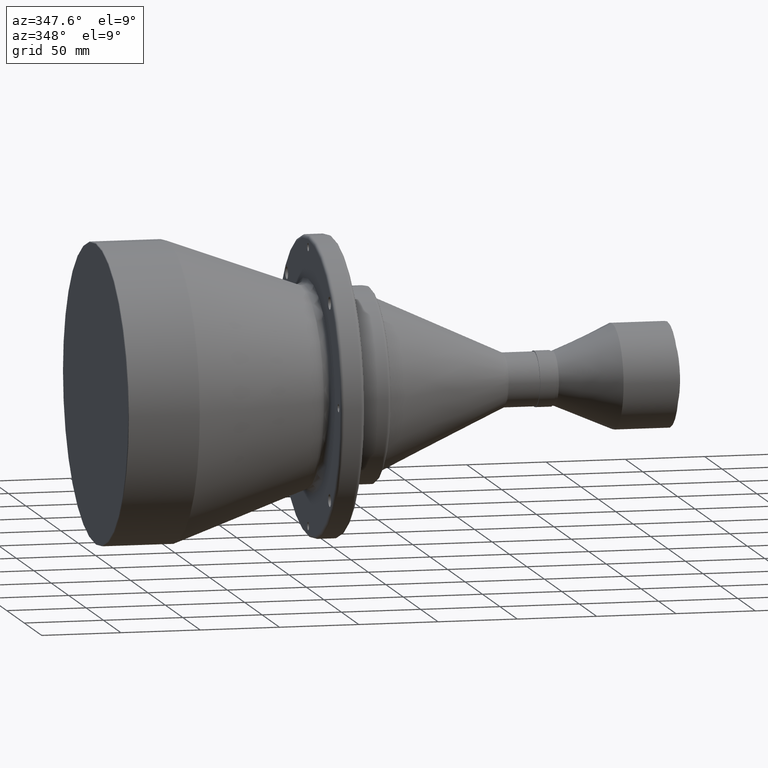
[diagram: clean part render]
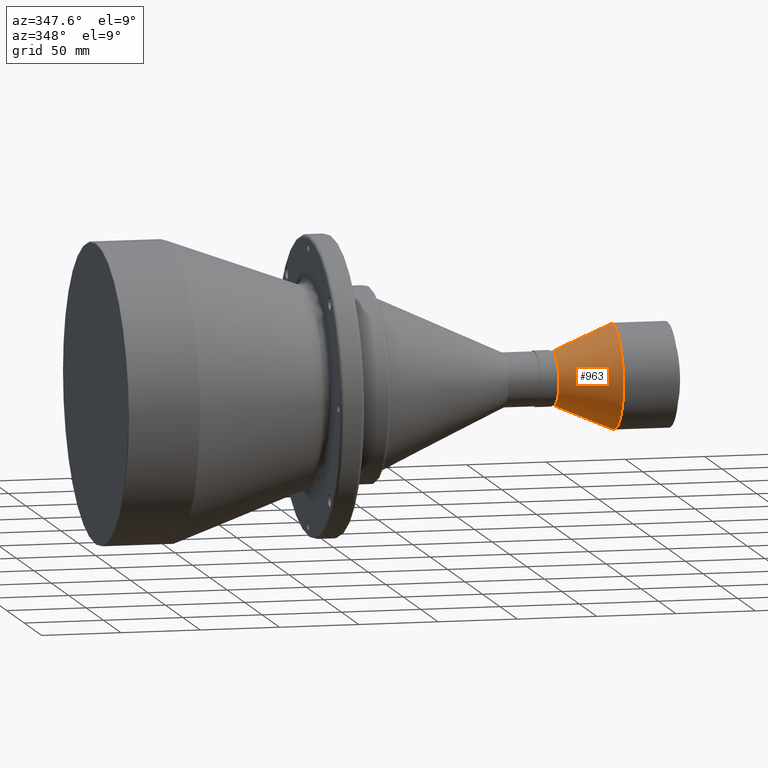
[diagram: same view with one face highlighted and labeled with its STEP entity id]
A machine part, auxiliary view. The second image highlights one B-rep face of the part: STEP entity #963.
In plain terms, the highlighted conical surface has half-angle 23.217 deg.
Its self-contained STEP definition (entity closure, byte-faithful):
#14 = DIRECTION ( 'NONE',  ( -1.000000000000000000, -0.0000000000000000000, -0.0000000000000000000 ) ) ;
#32 = DIRECTION ( 'NONE',  ( 0.0000000000000000000, 0.0000000000000000000, 1.000000000000000000 ) ) ;
#42 = CIRCLE ( 'NONE', #1491, 17.00000000000000000 ) ;
#139 = DIRECTION ( 'NONE',  ( 0.9190175411928217500, 0.0000000000000000000, -0.3942166396537572500 ) ) ;
#211 = CARTESIAN_POINT ( 'NONE',  ( 325.6999999999999900, 0.0000000000000000000, 0.0000000000000000000 ) ) ;
#253 = DIRECTION ( 'NONE',  ( 0.0000000000000000000, 0.0000000000000000000, -1.000000000000000000 ) ) ;
#327 = CARTESIAN_POINT ( 'NONE',  ( 288.3999999999999800, 0.0000000000000000000, 0.0000000000000000000 ) ) ;
#337 = CIRCLE ( 'NONE', #549, 33.00000000000000000 ) ;
#413 = VERTEX_POINT ( 'NONE', #494 ) ;
#462 = EDGE_LOOP ( 'NONE', ( #1801, #1552, #757, #1736 ) ) ;
#494 = CARTESIAN_POINT ( 'NONE',  ( 325.6999999999999900, 4.041334437186266200E-015, -33.00000000000000000 ) ) ;
#524 = VECTOR ( 'NONE', #978, 1000.000000000000200 ) ;
#549 = AXIS2_PLACEMENT_3D ( 'NONE', #579, #14, #1013 ) ;
#579 = CARTESIAN_POINT ( 'NONE',  ( 325.6999999999999900, 0.0000000000000000000, 0.0000000000000000000 ) ) ;
#707 = CARTESIAN_POINT ( 'NONE',  ( 325.6999999999999900, 4.041334437186266200E-015, 33.00000000000000000 ) ) ;
#749 = DIRECTION ( 'NONE',  ( -1.000000000000000000, -0.0000000000000000000, -0.0000000000000000000 ) ) ;
#757 = ORIENTED_EDGE ( 'NONE', *, *, #1782, .T. ) ;
#761 = LINE ( 'NONE', #707, #524 ) ;
#808 = CARTESIAN_POINT ( 'NONE',  ( 325.6999999999999900, 0.0000000000000000000, -33.00000000000000000 ) ) ;
#963 = ADVANCED_FACE ( 'NONE', ( #1507 ), #1156, .T. ) ;
#973 = DIRECTION ( 'NONE',  ( 1.000000000000000000, 0.0000000000000000000, 0.0000000000000000000 ) ) ;
#978 = DIRECTION ( 'NONE',  ( 0.9190175411928217500, 4.827761459225994500E-017, 0.3942166396537572500 ) ) ;
#1007 = CARTESIAN_POINT ( 'NONE',  ( 288.3999999999999800, 3.061616997868383000E-015, 17.00000000000000000 ) ) ;
#1013 = DIRECTION ( 'NONE',  ( 0.0000000000000000000, 0.0000000000000000000, 1.000000000000000000 ) ) ;
#1027 = VECTOR ( 'NONE', #139, 1000.000000000000200 ) ;
#1048 = AXIS2_PLACEMENT_3D ( 'NONE', #211, #973, #253 ) ;
#1113 = LINE ( 'NONE', #808, #1027 ) ;
#1156 = CONICAL_SURFACE ( 'NONE', #1048, 33.00000000000000000, 0.4052153061702699600 ) ;
#1159 = VERTEX_POINT ( 'NONE', #1301 ) ;
#1181 = EDGE_CURVE ( 'NONE', #1815, #1795, #42, .T. ) ;
#1301 = CARTESIAN_POINT ( 'NONE',  ( 325.6999999999999900, 0.0000000000000000000, 33.00000000000000000 ) ) ;
#1401 = EDGE_CURVE ( 'NONE', #413, #1159, #337, .T. ) ;
#1491 = AXIS2_PLACEMENT_3D ( 'NONE', #327, #749, #32 ) ;
#1507 = FACE_OUTER_BOUND ( 'NONE', #462, .T. ) ;
#1552 = ORIENTED_EDGE ( 'NONE', *, *, #1181, .F. ) ;
#1565 = CARTESIAN_POINT ( 'NONE',  ( 288.3999999999999800, 0.0000000000000000000, -17.00000000000000000 ) ) ;
#1736 = ORIENTED_EDGE ( 'NONE', *, *, #1401, .T. ) ;
#1782 = EDGE_CURVE ( 'NONE', #1815, #413, #1113, .T. ) ;
#1795 = VERTEX_POINT ( 'NONE', #1007 ) ;
#1801 = ORIENTED_EDGE ( 'NONE', *, *, #1810, .F. ) ;
#1810 = EDGE_CURVE ( 'NONE', #1795, #1159, #761, .T. ) ;
#1815 = VERTEX_POINT ( 'NONE', #1565 ) ;